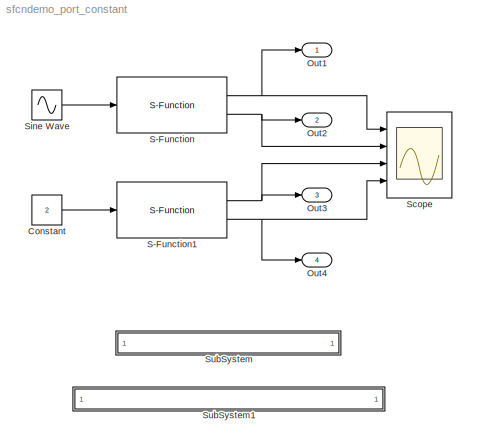
MODEL sfcndemo_port_constant
KIND model
BLOCK [Constant] Constant
  Value = 2
BLOCK [Outport] Out1
  IconDisplay = Port number
BLOCK [Outport] Out2
  IconDisplay = Port number
  Port = 2
BLOCK [Outport] Out3
  IconDisplay = Port number
  Port = 3
BLOCK [Outport] Out4
  IconDisplay = Port number
  Port = 4
BLOCK [S-Function] S-Function
  FunctionName = sfun_port_constant
  Parameters = 5
  Ports = [1, 2]
BLOCK [S-Function] S-Function1
  FunctionName = sfun_port_constant
  Parameters = 7
  Ports = [1, 2]
BLOCK [Scope] Scope
  DataFormat = StructureWithTime
  NumInputPorts = 4
  Ports = [4]
  TimeRange = 10
  YMax = 5~6~15~8
  YMin = -5~4~13~6
BLOCK [Sin] Sine Wave
  Ports = [0, 1]
  SampleTime = 0
  SineType = Time based
BLOCK [SubSystem] SubSystem
  MaskDisplay = disp('matlabroot<path>');
  MaskIconFrame = on
  MaskIconOpaque = on
  MaskIconRotate = none
  MaskIconUnits = autoscale
  MinAlgLoopOccurrences = off
  OpenFcn = edit(fullfile(matlabroot,'simulink','src','sfun_port_constant.c'))
  Ports = []
  PropExecContextAcrossSSBoundary = on
  RTWSystemCode = Auto
  TreatAsAtomicUnit = off
BLOCK [SubSystem] SubSystem1
  MaskDisplay = disp('matlabroot<path>');
  MaskIconFrame = on
  MaskIconOpaque = on
  MaskIconRotate = none
  MaskIconUnits = autoscale
  MinAlgLoopOccurrences = off
  OpenFcn = edit(fullfile(matlabroot,'toolbox','simulink','blocks','tlc_c','sfun_port_constant.tlc'))
  Ports = []
  PropExecContextAcrossSSBoundary = on
  RTWSystemCode = Auto
  TreatAsAtomicUnit = off
LINE Constant:1 -> S-Function1:1
NET S-Function1:1 -> Out3:1, Scope:3
NET S-Function1:2 -> Out4:1, Scope:4
NET S-Function:1 -> Out1:1, Scope:1
NET S-Function:2 -> Out2:1, Scope:2
LINE Sine Wave:1 -> S-Function:1
note: NET lines group one-source signal fan-out (src -> all destinations, sorted); 1:1 wires keep LINE
note: 2 file-system paths scrubbed to <path> (not preserved elsewhere — flat text is the only slx artifact)
